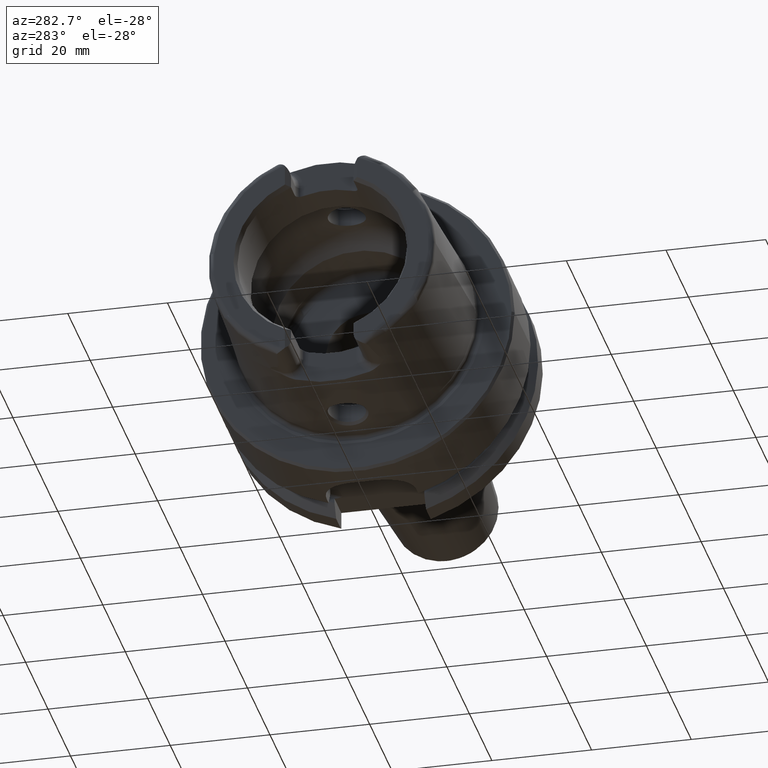
[diagram: clean part render]
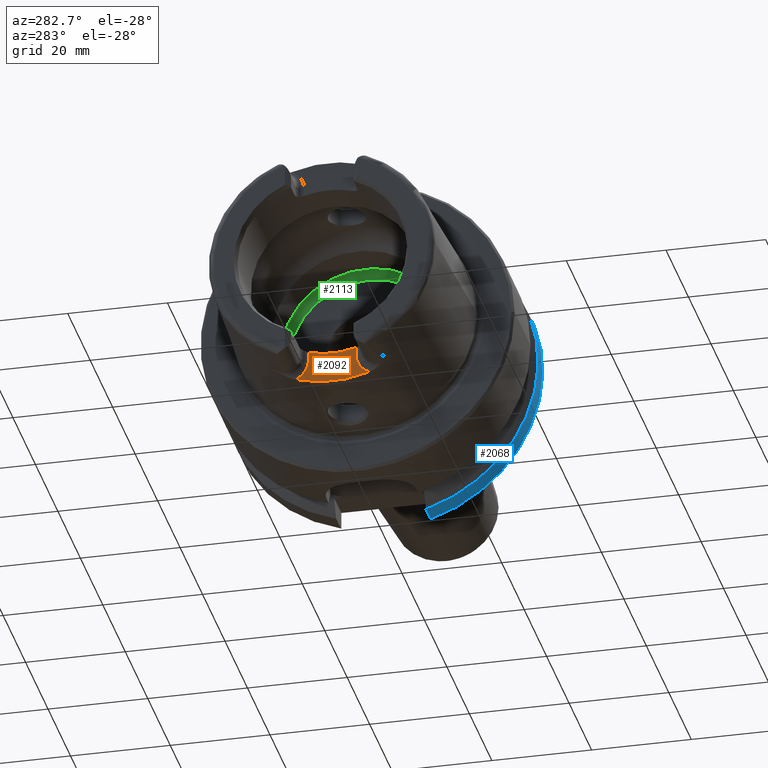
[diagram: same view with three faces highlighted in distinct colors, each labeled with its STEP entity id]
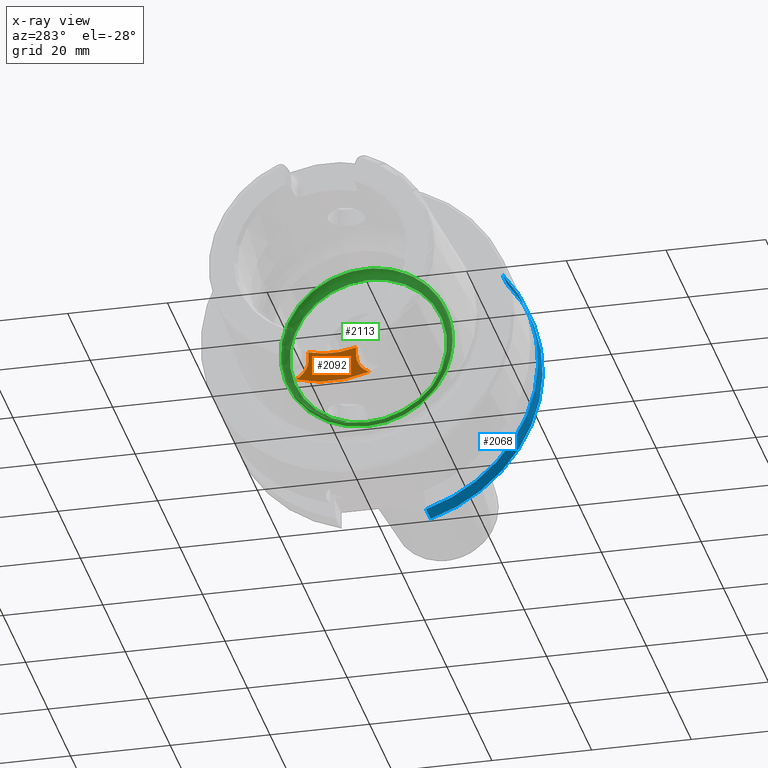
[diagram: x-ray of the same camera — body ghosted, the three highlighted faces saturated]
A machine part, auxiliary view with three faces highlighted in distinct colors.
The next image is the same camera in x-ray (body ghosted, the three faces saturated) — at least one of them is partly hidden behind the body in this view.
Their STEP definitions:

[orange] entity #2092 — the highlighted planar face has unit normal (-1, 0, 0).
#134=PLANE('',#2335);
#304=FACE_OUTER_BOUND('',#434,.T.);
#434=EDGE_LOOP('',(#1836,#1837,#1838,#1839,#1840,#1841));
#566=LINE('',#4388,#676);
#568=LINE('',#4397,#678);
#676=VECTOR('',#2874,10.);
#678=VECTOR('',#2886,10.);
#726=CIRCLE('',#2224,23.2184268537074);
#778=CIRCLE('',#2330,4.38);
#780=CIRCLE('',#2336,17.);
#781=CIRCLE('',#2337,4.38);
#898=VERTEX_POINT('',#3483);
#899=VERTEX_POINT('',#3494);
#1000=VERTEX_POINT('',#4373);
#1001=VERTEX_POINT('',#4377);
#1002=VERTEX_POINT('',#4394);
#1003=VERTEX_POINT('',#4396);
#1129=EDGE_CURVE('',#898,#899,#726,.T.);
#1291=EDGE_CURVE('',#1000,#898,#778,.T.);
#1293=EDGE_CURVE('',#1001,#1000,#566,.T.);
#1296=EDGE_CURVE('',#1002,#1001,#780,.T.);
#1297=EDGE_CURVE('',#1003,#1002,#568,.T.);
#1298=EDGE_CURVE('',#899,#1003,#781,.T.);
#1836=ORIENTED_EDGE('',*,*,#1291,.F.);
#1837=ORIENTED_EDGE('',*,*,#1293,.F.);
#1838=ORIENTED_EDGE('',*,*,#1296,.F.);
#1839=ORIENTED_EDGE('',*,*,#1297,.F.);
#1840=ORIENTED_EDGE('',*,*,#1298,.F.);
#1841=ORIENTED_EDGE('',*,*,#1129,.F.);
#2092=ADVANCED_FACE('',(#304),#134,.T.);
#2224=AXIS2_PLACEMENT_3D('',#3495,#2604,#2605);
#2330=AXIS2_PLACEMENT_3D('',#4375,#2870,#2871);
#2335=AXIS2_PLACEMENT_3D('',#4393,#2882,#2883);
#2336=AXIS2_PLACEMENT_3D('',#4395,#2884,#2885);
#2337=AXIS2_PLACEMENT_3D('',#4398,#2887,#2888);
#2604=DIRECTION('center_axis',(1.,0.,0.));
#2605=DIRECTION('ref_axis',(0.,1.,0.));
#2870=DIRECTION('center_axis',(-1.,0.,0.));
#2871=DIRECTION('ref_axis',(0.,0.522806483831831,-0.852451394780604));
#2874=DIRECTION('',(0.,0.,-1.));
#2882=DIRECTION('center_axis',(-1.,0.,0.));
#2883=DIRECTION('ref_axis',(0.,0.,1.));
#2884=DIRECTION('center_axis',(-1.,0.,0.));
#2885=DIRECTION('ref_axis',(0.,1.,0.));
#2886=DIRECTION('',(0.,0.,1.));
#2887=DIRECTION('center_axis',(-1.,0.,0.));
#2888=DIRECTION('ref_axis',(0.,-0.522806483831831,-0.852451394780604));
#3483=CARTESIAN_POINT('',(-22.,-7.4031250016059,-22.0065691504051));
#3494=CARTESIAN_POINT('',(-22.,7.4031250016059,-22.0065691504051));
#3495=CARTESIAN_POINT('Origin',(-22.,0.,0.));
#4373=CARTESIAN_POINT('',(-22.,-4.77,-17.99));
#4375=CARTESIAN_POINT('Origin',(-22.,-9.15,-17.99));
#4377=CARTESIAN_POINT('',(-22.,-4.77,-16.3170800083839));
#4388=CARTESIAN_POINT('',(-22.,-4.77,-17.8001077154309));
#4393=CARTESIAN_POINT('Origin',(-22.,0.,-17.6102154308617));
#4394=CARTESIAN_POINT('',(-22.,4.77,-16.3170800083839));
#4395=CARTESIAN_POINT('Origin',(-22.,0.,0.));
#4396=CARTESIAN_POINT('',(-22.,4.77,-17.99));
#4397=CARTESIAN_POINT('',(-22.,4.77,-14.3051077154309));
#4398=CARTESIAN_POINT('Origin',(-22.,9.15,-17.99));

[blue] entity #2068 — the highlighted cylindrical surface (partial cylindrical patch) has radius 31.5 mm, axis along (1, 0, 0).
#198=CYLINDRICAL_SURFACE('',#2295,31.5);
#280=FACE_OUTER_BOUND('',#409,.T.);
#409=EDGE_LOOP('',(#1703,#1704,#1705,#1706));
#518=LINE('',#3888,#628);
#534=LINE('',#4023,#644);
#628=VECTOR('',#2658,10.);
#644=VECTOR('',#2718,10.);
#762=CIRCLE('',#2292,31.5);
#764=CIRCLE('',#2296,31.5);
#925=VERTEX_POINT('',#3883);
#926=VERTEX_POINT('',#3887);
#951=VERTEX_POINT('',#4011);
#952=VERTEX_POINT('',#4022);
#1168=EDGE_CURVE('',#926,#925,#518,.T.);
#1206=EDGE_CURVE('',#952,#951,#534,.T.);
#1251=EDGE_CURVE('',#926,#951,#762,.T.);
#1254=EDGE_CURVE('',#925,#952,#764,.T.);
#1703=ORIENTED_EDGE('',*,*,#1168,.T.);
#1704=ORIENTED_EDGE('',*,*,#1254,.T.);
#1705=ORIENTED_EDGE('',*,*,#1206,.T.);
#1706=ORIENTED_EDGE('',*,*,#1251,.F.);
#2068=ADVANCED_FACE('',(#280),#198,.T.);
#2292=AXIS2_PLACEMENT_3D('',#4228,#2779,#2780);
#2295=AXIS2_PLACEMENT_3D('',#4233,#2786,#2787);
#2296=AXIS2_PLACEMENT_3D('',#4234,#2788,#2789);
#2658=DIRECTION('',(-1.,0.,0.));
#2718=DIRECTION('',(1.,0.,0.));
#2779=DIRECTION('center_axis',(1.,0.,0.));
#2780=DIRECTION('ref_axis',(0.,0.,-1.));
#2786=DIRECTION('center_axis',(1.,0.,0.));
#2787=DIRECTION('ref_axis',(0.,-0.956344671622108,-0.292241114595468));
#2788=DIRECTION('center_axis',(1.,0.,0.));
#2789=DIRECTION('ref_axis',(0.,0.,-1.));
#3883=CARTESIAN_POINT('',(21.3774990747593,-24.3361870472759,20.));
#3887=CARTESIAN_POINT('',(25.5,-24.3361870472759,20.));
#3888=CARTESIAN_POINT('',(23.4387495373797,-24.3361870472759,20.));
#4011=CARTESIAN_POINT('',(25.5,-9.,-30.1869176962472));
#4022=CARTESIAN_POINT('',(21.3774990747593,-9.,-30.1869176962472));
#4023=CARTESIAN_POINT('',(23.4387495373797,-9.,-30.1869176962472));
#4228=CARTESIAN_POINT('Origin',(25.5,0.,0.));
#4233=CARTESIAN_POINT('Origin',(23.4387495373797,0.,0.));
#4234=CARTESIAN_POINT('Origin',(21.3774990747593,0.,0.));

[green] entity #2113 — the highlighted toroidal blend (fillet) surface has major radius 15.75 mm and minor (blend) radius 1.5 mm.
#165=TOROIDAL_SURFACE('',#2379,15.75,1.5);
#325=FACE_OUTER_BOUND('',#458,.T.);
#458=EDGE_LOOP('',(#1936,#1937,#1938,#1939,#1940));
#802=CIRCLE('',#2378,15.75);
#803=CIRCLE('',#2380,1.5);
#804=CIRCLE('',#2381,17.);
#805=CIRCLE('',#2382,17.);
#1013=VERTEX_POINT('',#4462);
#1014=VERTEX_POINT('',#4465);
#1015=VERTEX_POINT('',#4467);
#1324=EDGE_CURVE('',#1013,#1013,#802,.T.);
#1325=EDGE_CURVE('',#1013,#1014,#803,.T.);
#1326=EDGE_CURVE('',#1014,#1015,#804,.T.);
#1327=EDGE_CURVE('',#1015,#1014,#805,.T.);
#1936=ORIENTED_EDGE('',*,*,#1324,.F.);
#1937=ORIENTED_EDGE('',*,*,#1325,.T.);
#1938=ORIENTED_EDGE('',*,*,#1326,.T.);
#1939=ORIENTED_EDGE('',*,*,#1327,.T.);
#1940=ORIENTED_EDGE('',*,*,#1325,.F.);
#2113=ADVANCED_FACE('',(#325),#165,.F.);
#2378=AXIS2_PLACEMENT_3D('',#4463,#2973,#2974);
#2379=AXIS2_PLACEMENT_3D('',#4464,#2975,#2976);
#2380=AXIS2_PLACEMENT_3D('',#4466,#2977,#2978);
#2381=AXIS2_PLACEMENT_3D('',#4468,#2979,#2980);
#2382=AXIS2_PLACEMENT_3D('',#4469,#2981,#2982);
#2973=DIRECTION('center_axis',(-1.,0.,0.));
#2974=DIRECTION('ref_axis',(0.,0.,1.));
#2975=DIRECTION('center_axis',(-1.,0.,0.));
#2976=DIRECTION('ref_axis',(0.,0.,1.));
#2977=DIRECTION('center_axis',(0.,1.,-1.22464679914735E-16));
#2978=DIRECTION('ref_axis',(0.,-1.22464679914735E-16,-1.));
#2979=DIRECTION('center_axis',(-1.,0.,0.));
#2980=DIRECTION('ref_axis',(0.,0.,1.));
#2981=DIRECTION('center_axis',(-1.,0.,0.));
#2982=DIRECTION('ref_axis',(0.,0.,1.));
#4462=CARTESIAN_POINT('',(10.,-1.92881870865708E-15,-15.75));
#4463=CARTESIAN_POINT('Origin',(10.,0.,0.));
#4464=CARTESIAN_POINT('Origin',(8.5,0.,0.));
#4465=CARTESIAN_POINT('',(7.67084380241115,-2.0818995585505E-15,-17.));
#4466=CARTESIAN_POINT('Origin',(8.5,-1.92881870865708E-15,-15.75));
#4467=CARTESIAN_POINT('',(7.67084380241115,-17.,2.0818995585505E-15));
#4468=CARTESIAN_POINT('Origin',(7.67084380241115,0.,0.));
#4469=CARTESIAN_POINT('Origin',(7.67084380241115,0.,0.));